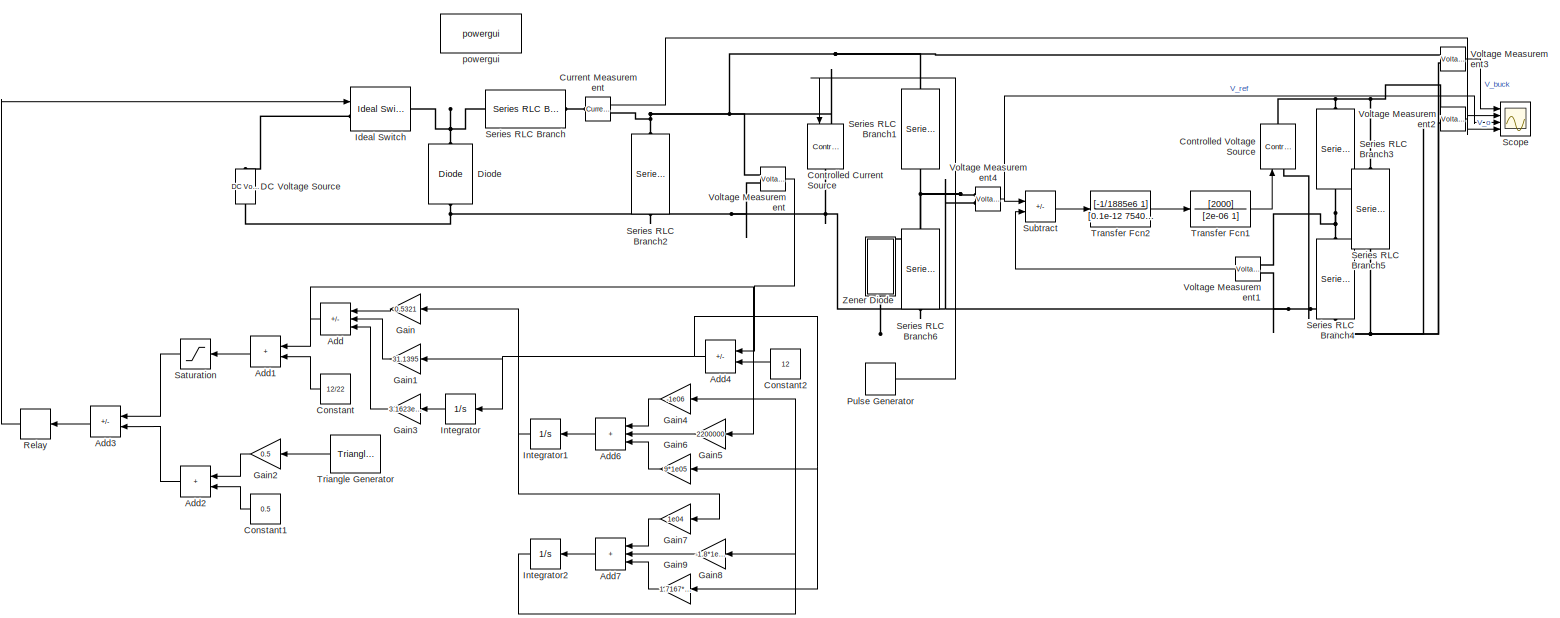
[diagram: root canvas - part 1/1, most of the canvas]
MODEL slx_18939c2cc093
KIND model
CONFIG AbsTol = auto
CONFIG EnableMultiTasking = off
CONFIG FixedStep = auto
CONFIG MaxStep = auto
CONFIG MinStep = auto
CONFIG RelTol = 1e-3
CONFIG SampleTimeConstraint = Unconstrained
CONFIG Solver = VariableStepAuto
CONFIG SolverName = VariableStepAuto
CONFIG StartTime = 0.0
CONFIG StopTime = 0.1
BLOCK [Sum] Add
  IconShape = rectangular
  Inputs = ---
  Ports = [3, 1]
BLOCK [Sum] Add1
  IconShape = rectangular
  Ports = [2, 1]
BLOCK [Sum] Add2
  IconShape = rectangular
  Ports = [2, 1]
BLOCK [Sum] Add3
  IconShape = rectangular
  Inputs = +-
  Ports = [2, 1]
BLOCK [Sum] Add4
  IconShape = rectangular
  Inputs = +-
  Ports = [2, 1]
BLOCK [Sum] Add6
  IconShape = rectangular
  Inputs = +++
  Ports = [3, 1]
BLOCK [Sum] Add7
  IconShape = rectangular
  Inputs = +++
  Ports = [3, 1]
BLOCK [Constant] Constant
  Value = 12/22
BLOCK [Constant] Constant1
  Value = 0.5
BLOCK [Constant] Constant2
  Value = 12
BLOCK [Reference] Controlled Current Source  REF=powerlib/Electrical
Sources/Controlled Current Source
  NameLocation = right
  Ports = [1, 0, 0, 0, 0, 1, 1]
  SourceBlock = powerlib/Electrical\nSources/Controlled Current Source
  SourceProductBaseCode = PS
  SourceType = Controlled Current Source
BLOCK [Reference] Controlled Voltage Source  REF=powerlib/Electrical
Sources/Controlled Voltage Source
  NameLocation = right
  Ports = [1, 0, 0, 0, 0, 1, 1]
  SourceBlock = powerlib/Electrical\nSources/Controlled Voltage Source
  SourceProductBaseCode = PS
  SourceType = Controlled Voltage Source
BLOCK [Reference] Current Measurement  REF=powerlib/Measurements/Current Measurement
  Ports = [0, 1, 0, 0, 0, 1, 1]
  SourceBlock = powerlib/Measurements/Current Measurement
  SourceProductBaseCode = PS
  SourceType = Current Measurement
  UserDataPersistent = on
BLOCK [Reference] DC Voltage Source  REF=powerlib/Electrical
Sources/DC Voltage Source
  NameLocation = right
  Ports = [0, 0, 0, 0, 0, 1, 1]
  SourceBlock = powerlib/Electrical\nSources/DC Voltage Source
  SourceProductBaseCode = PS
  SourceType = DC Voltage Source
BLOCK [Reference] Diode  REF=powerlib/Power
Electronics/Diode
  NameLocation = right
  Ports = [0, 0, 0, 0, 0, 1, 1]
  SourceBlock = powerlib/Power\nElectronics/Diode
  SourceProductBaseCode = PS
  SourceType = Diode
BLOCK [Gain] Gain
  Gain = 0.5321
BLOCK [Gain] Gain1
  Gain = 31.1395
BLOCK [Gain] Gain2
  Gain = 0.5
BLOCK [Gain] Gain3
  Gain = 3.1623e03
BLOCK [Gain] Gain4
  Gain = -1e06
BLOCK [Gain] Gain5
  Gain = 2200000
BLOCK [Gain] Gain6
  Gain = 9*1e05
BLOCK [Gain] Gain7
  Gain = 1e04
BLOCK [Gain] Gain8
  Gain = -1.8*1e05
BLOCK [Gain] Gain9
  Gain = 1.7167*1e05
BLOCK [Reference] Ideal Switch  REF=powerlib/Power
Electronics/Ideal Switch
  Ports = [1, 0, 0, 0, 0, 1, 1]
  SourceBlock = powerlib/Power\nElectronics/Ideal Switch
  SourceProductBaseCode = PS
  SourceType = Ideal Switch
BLOCK [Integrator] Integrator
  Ports = [1, 1]
BLOCK [Integrator] Integrator1
  Ports = [1, 1]
BLOCK [Integrator] Integrator2
  Ports = [1, 1]
BLOCK [DiscretePulseGenerator] Pulse Generator
  Amplitude = 5
  Period = 0.1
  PhaseDelay = 0.02
  Ports = [0, 1]
  PulseType = Time based
  PulseWidth = 50
BLOCK [Relay] Relay
BLOCK [Saturate] Saturation
  LowerLimit = 0
  UpperLimit = 1
  ZeroCross = off
BLOCK [Scope] Scope
  Floating = off
  NumInputPorts = 4
  Ports = [4]
  ScopeSpecificationString = Simulink.scopes.TimeScopeBlockCfg('CurrentConfiguration', extmgr.ConfigurationSet(extmgr.Configuration('Core','General UI',true),extmgr.Configuration('Core','Source UI',true),extmgr.Configuration('Sources','WiredSimulink',true,'DataLoggingVariableName','ScopeData1'),extmgr.Configuration('Visuals','Time Domain',true,'SerializedDisplays',{struct('MinYLimReal','11.58492','MaxYLimReal','12.45659','YLa...<+3561ch>
BLOCK [Reference] Series RLC Branch  REF=powerlib/Elements/Series RLC Branch
  Ports = [0, 0, 0, 0, 0, 1, 1]
  SourceBlock = powerlib/Elements/Series RLC Branch
  SourceProductBaseCode = PS
  SourceType = Series RLC Branch
BLOCK [Reference] Series RLC Branch1  REF=powerlib/Elements/Series RLC Branch
  NameLocation = left
  Ports = [0, 0, 0, 0, 0, 1, 1]
  SourceBlock = powerlib/Elements/Series RLC Branch
  SourceProductBaseCode = PS
  SourceType = Series RLC Branch
BLOCK [Reference] Series RLC Branch2  REF=powerlib/Elements/Series RLC Branch
  NameLocation = left
  Ports = [0, 0, 0, 0, 0, 1, 1]
  SourceBlock = powerlib/Elements/Series RLC Branch
  SourceProductBaseCode = PS
  SourceType = Series RLC Branch
BLOCK [Reference] Series RLC Branch3  REF=powerlib/Elements/Series RLC Branch
  NameLocation = left
  Ports = [0, 0, 0, 0, 0, 1, 1]
  SourceBlock = powerlib/Elements/Series RLC Branch
  SourceProductBaseCode = PS
  SourceType = Series RLC Branch
BLOCK [Reference] Series RLC Branch4  REF=powerlib/Elements/Series RLC Branch
  NameLocation = left
  Ports = [0, 0, 0, 0, 0, 1, 1]
  SourceBlock = powerlib/Elements/Series RLC Branch
  SourceProductBaseCode = PS
  SourceType = Series RLC Branch
BLOCK [Reference] Series RLC Branch5  REF=powerlib/Elements/Series RLC Branch
  NameLocation = left
  Ports = [0, 0, 0, 0, 0, 1, 1]
  SourceBlock = powerlib/Elements/Series RLC Branch
  SourceProductBaseCode = PS
  SourceType = Series RLC Branch
BLOCK [Reference] Series RLC Branch6  REF=powerlib/Elements/Series RLC Branch
  NameLocation = left
  Ports = [0, 0, 0, 0, 0, 1, 1]
  SourceBlock = powerlib/Elements/Series RLC Branch
  SourceProductBaseCode = PS
  SourceType = Series RLC Branch
BLOCK [Sum] Subtract
  IconShape = rectangular
  Inputs = +-
  Ports = [2, 1]
BLOCK [TransferFcn] Transfer Fcn1
  Denominator = [2e-06 1]
  Numerator = [2000]
BLOCK [TransferFcn] Transfer Fcn2
  Denominator = [0.1e-12 7540e-8 1]
  Numerator = [-1/1885e6 1]
BLOCK [Reference] Triangle Generator  REF=powerlib_meascontrol/Pulse & Signal
Generators/Triangle
Generator
  Ports = [0, 1]
  SourceBlock = powerlib_meascontrol/Pulse & Signal\nGenerators/Triangle\nGenerator
  SourceProductBaseCode = PS
  SourceType = Triangle Generator
BLOCK [Reference] Voltage Measurement  REF=powerlib/Measurements/Voltage Measurement
  Ports = [0, 1, 0, 0, 0, 2]
  SourceBlock = powerlib/Measurements/Voltage Measurement
  SourceProductBaseCode = PS
  SourceType = Voltage Measurement
  UserDataPersistent = on
BLOCK [Reference] Voltage Measurement1  REF=powerlib/Measurements/Voltage Measurement
  Ports = [0, 1, 0, 0, 0, 2]
  SourceBlock = powerlib/Measurements/Voltage Measurement
  SourceProductBaseCode = PS
  SourceType = Voltage Measurement
  UserDataPersistent = on
BLOCK [Reference] Voltage Measurement2  REF=powerlib/Measurements/Voltage Measurement
  Ports = [0, 1, 0, 0, 0, 2]
  SourceBlock = powerlib/Measurements/Voltage Measurement
  SourceProductBaseCode = PS
  SourceType = Voltage Measurement
  UserDataPersistent = on
BLOCK [Reference] Voltage Measurement3  REF=powerlib/Measurements/Voltage Measurement
  Ports = [0, 1, 0, 0, 0, 2]
  SourceBlock = powerlib/Measurements/Voltage Measurement
  SourceProductBaseCode = PS
  SourceType = Voltage Measurement
  UserDataPersistent = on
BLOCK [Reference] Voltage Measurement4  REF=powerlib/Measurements/Voltage Measurement
  Ports = [0, 1, 0, 0, 0, 2]
  SourceBlock = powerlib/Measurements/Voltage Measurement
  SourceProductBaseCode = PS
  SourceType = Voltage Measurement
  UserDataPersistent = on
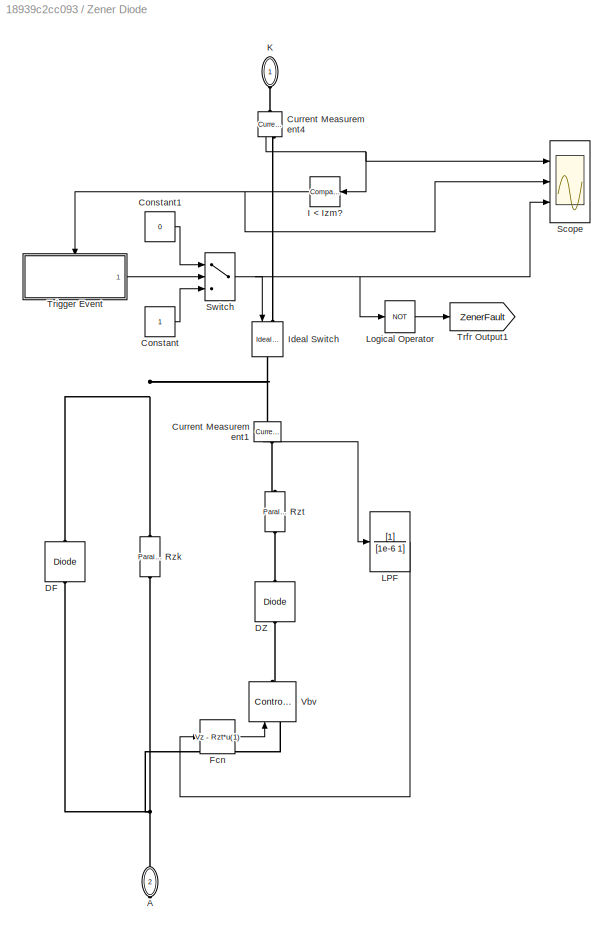
BLOCK [SubSystem] Zener Diode
  NameLocation = left
  Ports = [0, 0, 0, 0, 0, 1, 1]
  RequestExecContextInheritance = off
BLOCK [PMIOPort] Zener Diode/A
  NameLocation = left
  Port = 2
  Side = Right
BLOCK [Constant] Zener Diode/Constant
BLOCK [Constant] Zener Diode/Constant1
  Value = 0
BLOCK [Reference] Zener Diode/Current Measurement1  REF=powerlib/Measurements/Current Measurement
  NameLocation = left
  Ports = [0, 1, 0, 0, 0, 1, 1]
  SourceBlock = powerlib/Measurements/Current Measurement
  SourceProductBaseCode = PS
  SourceType = Current Measurement
BLOCK [Reference] Zener Diode/Current Measurement4  REF=powerlib/Measurements/Current Measurement
  NameLocation = left
  Ports = [0, 1, 0, 0, 0, 1, 1]
  SourceBlock = powerlib/Measurements/Current Measurement
  SourceProductBaseCode = PS
  SourceType = Current Measurement
BLOCK [Reference] Zener Diode/DF  REF=powerlib/Power
Electronics/Diode
  AttributesFormatString = \n
  NameLocation = left
  Ports = [0, 0, 0, 0, 0, 1, 1]
  SourceBlock = powerlib/Power\nElectronics/Diode
  SourceProductBaseCode = PS
  SourceType = Diode
BLOCK [Reference] Zener Diode/DZ  REF=powerlib/Power
Electronics/Diode
  AttributesFormatString = \n
  NameLocation = left
  Ports = [0, 0, 0, 0, 0, 1, 1]
  SourceBlock = powerlib/Power\nElectronics/Diode
  SourceProductBaseCode = PS
  SourceType = Diode
BLOCK [Fcn] Zener Diode/Fcn
  Expr = Vz - Rzt*u(1)
BLOCK [Reference] Zener Diode/I < Izm?  REF=simulink/Logic and Bit
Operations/Compare
To Constant
  Ports = [1, 1]
  SourceBlock = simulink/Logic and Bit\nOperations/Compare\nTo Constant
  SourceProductBaseCode = SL
  SourceType = Compare To Constant
BLOCK [Reference] Zener Diode/Ideal Switch  REF=powerlib/Power
Electronics/Ideal Switch
  NameLocation = left
  Ports = [1, 0, 0, 0, 0, 1, 1]
  SourceBlock = powerlib/Power\nElectronics/Ideal Switch
  SourceProductBaseCode = PS
  SourceType = Ideal Switch
BLOCK [PMIOPort] Zener Diode/K
  NameLocation = left
  Side = Left
BLOCK [TransferFcn] Zener Diode/LPF
  Denominator = [1e-6 1]
  NameLocation = top
BLOCK [Logic] Zener Diode/Logical Operator
  AllPortsSameDT = off
  Operator = NOT
  OutDataTypeStr = boolean
  Ports = [1, 1]
BLOCK [Reference] Zener Diode/Rzk  REF=powerlib/Elements/Parallel RLC Branch
  AttributesFormatString = \n
  NameLocation = left
  Ports = [0, 0, 0, 0, 0, 1, 1]
  SourceBlock = powerlib/Elements/Parallel RLC Branch
  SourceProductBaseCode = PS
  SourceType = Parallel RLC Branch
BLOCK [Reference] Zener Diode/Rzt  REF=powerlib/Elements/Parallel RLC Branch
  AttributesFormatString = \n
  NameLocation = left
  Ports = [0, 0, 0, 0, 0, 1, 1]
  SourceBlock = powerlib/Elements/Parallel RLC Branch
  SourceProductBaseCode = PS
  SourceType = Parallel RLC Branch
BLOCK [Scope] Zener Diode/Scope
  Floating = off
  NumInputPorts = 3
  Ports = [3]
  ScopeSpecificationString = C++SS(StrPVP('Location','[9, 663, 601, 1068]'),StrPVP('Open','off'),StrPVP('ZoomMode','xonly'),MxPVP('AxesTitles',54,'struct(''axes1'',''%<SignalLabel>'',''axes2'',''%<SignalLabel>'',''axes3'',''%<SignalLabel>'')'),StrPVP('ShowLegends','off'),StrPVP('YMin','-2.77556e-017~-1~0.95'),StrPVP('YMax','0.4~1~1.05'),StrPVP('SaveName','ScopeData4'),StrPVP('DataFormat','StructureWithTime'),StrPVP('LimitData...<+113ch>
BLOCK [Switch] Zener Diode/Switch
  Criteria = u2 > Threshold
  InputSameDT = off
  SaturateOnIntegerOverflow = off
BLOCK [Goto] Zener Diode/Trfr Output1
  GotoTag = ZenerFault
  TagVisibility = global
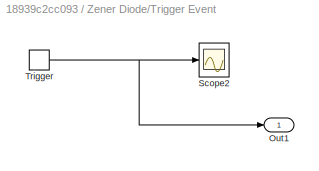
BLOCK [SubSystem] Zener Diode/Trigger Event
  Ports = [0, 1, 0, 1]
  RequestExecContextInheritance = off
  TreatAsAtomicUnit = on
BLOCK [Outport] Zener Diode/Trigger Event/Out1
  VectorParamsAs1DForOutWhenUnconnected = off
BLOCK [Scope] Zener Diode/Trigger Event/Scope2
  Floating = off
  NumInputPorts = 1
  Ports = [1]
  ScopeSpecificationString = C++SS(StrPVP('Location','[683, 406, 1275, 811]'),StrPVP('Open','off'),StrPVP('ZoomMode','xonly'),MxPVP('AxesTitles',54,'struct(''axes1'',''%<SignalLabel>'')'),StrPVP('ShowLegends','off'),StrPVP('YMin','-1'),StrPVP('YMax','1'),StrPVP('SaveName','ScopeData1'),StrPVP('DataFormat','StructureWithTime'),StrPVP('LimitDataPoints','off'),StrPVP('BlockParamSampleTime','0'),StrPVP('Decimation','1'),StrPVP('B...<+29ch>
BLOCK [TriggerPort] Zener Diode/Trigger Event/Trigger
  Ports = [0, 1]
  ShowOutputPort = on
  StatesWhenEnabling = held
  VariantControl = Variant
BLOCK [Reference] Zener Diode/Vbv  REF=powerlib/Electrical
Sources/Controlled Voltage Source
  NameLocation = left
  Ports = [1, 0, 0, 0, 0, 1, 1]
  SourceBlock = powerlib/Electrical\nSources/Controlled Voltage Source
  SourceProductBaseCode = PS
  SourceType = Controlled Voltage Source
BLOCK [Reference] powergui  REF=powerlib/powergui
  Ports = []
  Priority = 1
  SourceBlock = powerlib/powergui
  SourceProductBaseCode = PS
  SourceType = PSB option menu block
LINE Add1:1 -> Saturation:1
LINE Add2:1 -> Add3:2
LINE Add3:1 -> Relay:1
NET Add4:1 -> Gain1:1, Gain6:1, Gain9:1, Integrator:1
LINE Add6:1 -> Integrator1:1
LINE Add7:1 -> Integrator2:1
NET Add:1 -> Add1:1, Gain5:1
LINE Constant1:1 -> Add2:2
LINE Constant2:1 -> Add4:2
LINE Constant:1 -> Add1:2
LINE Current Measurement:1 -> Scope:4
LINE Gain1:1 -> Add:2
LINE Gain2:1 -> Add2:1
LINE Gain3:1 -> Add:3
LINE Gain4:1 -> Add6:1
LINE Gain5:1 -> Add6:2
LINE Gain6:1 -> Add6:3
LINE Gain7:1 -> Add7:1
LINE Gain8:1 -> Add7:2
LINE Gain9:1 -> Add7:3
LINE Gain:1 -> Add:1
NET Integrator1:1 -> Gain7:1, Gain:1
NET Integrator2:1 -> Gain4:1, Gain8:1
LINE Integrator:1 -> Gain3:1
LINE Pulse Generator:1 -> Controlled Current Source:1
LINE Relay:1 -> Ideal Switch:1
LINE Saturation:1 -> Add3:1
LINE Subtract:1 -> Transfer Fcn2:1
LINE Transfer Fcn1:1 -> Controlled Voltage Source:1
LINE Transfer Fcn2:1 -> Transfer Fcn1:1
LINE Triangle Generator:1 -> Gain2:1
LINE Voltage Measurement1:1 -> Subtract:2
LINE Voltage Measurement2:1 -> Scope:2
LINE Voltage Measurement3:1 -> Scope:1
NET Voltage Measurement4:1 -> Scope:3, Subtract:1
LINE Voltage Measurement:1 -> Add4:1
LINE Zener Diode/Constant1:1 -> Zener Diode/Switch:1
LINE Zener Diode/Constant:1 -> Zener Diode/Switch:3
LINE Zener Diode/Current Measurement1:1 -> Zener Diode/LPF:1
NET Zener Diode/Current Measurement4:1 -> Zener Diode/I < Izm?:1, Zener Diode/Scope:1
LINE Zener Diode/Fcn:1 -> Zener Diode/Vbv:1
NET Zener Diode/I < Izm?:1 -> Zener Diode/Scope:2, Zener Diode/Trigger Event:trigger
LINE Zener Diode/LPF:1 -> Zener Diode/Fcn:1
LINE Zener Diode/Logical Operator:1 -> Zener Diode/Trfr Output1:1
NET Zener Diode/Switch:1 -> Zener Diode/Ideal Switch:1, Zener Diode/Logical Operator:1, Zener Diode/Scope:3
NET Zener Diode/Trigger Event/Trigger:1 -> Zener Diode/Trigger Event/Out1:1, Zener Diode/Trigger Event/Scope2:1
LINE Zener Diode/Trigger Event:1 -> Zener Diode/Switch:2
PNET net1: Controlled Current Source:LConn1 -- Current Measurement:RConn1 -- Series RLC Branch1:LConn1 -- Series RLC Branch2:LConn1 -- Voltage Measurement3:LConn1 -- Voltage Measurement:LConn1
PNET net2: Controlled Current Source:RConn1 -- Controlled Voltage Source:LConn1 -- DC Voltage Source:LConn1 -- Diode:LConn1 -- Series RLC Branch2:RConn1 -- Series RLC Branch4:RConn1 -- Series RLC Branch5:RConn1 -- Series RLC Branch6:RConn1 -- Voltage Measurement1:LConn2 -- Voltage Measurement2:LConn2 -- Voltage Measurement3:LConn2 -- Voltage Measurement4:LConn2 -- Voltage Measurement:LConn2 -- Zener Diode:RConn1
PNET net3: Controlled Voltage Source:RConn1 -- Series RLC Branch3:LConn1 -- Series RLC Branch5:LConn1 -- Voltage Measurement2:LConn1
PLINE Current Measurement:LConn1 -- Series RLC Branch:RConn1
PLINE DC Voltage Source:RConn1 -- Ideal Switch:LConn1
PNET net4: Diode:RConn1 -- Ideal Switch:RConn1 -- Series RLC Branch:LConn1
PNET net5: Series RLC Branch1:RConn1 -- Series RLC Branch6:LConn1 -- Voltage Measurement4:LConn1 -- Zener Diode:LConn1
PNET net6: Series RLC Branch3:RConn1 -- Series RLC Branch4:LConn1 -- Voltage Measurement1:LConn1
PNET net7: Zener Diode/A:RConn1 -- Zener Diode/DF:LConn1 -- Zener Diode/Rzk:LConn1 -- Zener Diode/Vbv:LConn1
PNET net8: Zener Diode/Current Measurement1:LConn1 -- Zener Diode/DF:RConn1 -- Zener Diode/Ideal Switch:RConn1 -- Zener Diode/Rzk:RConn1
PLINE Zener Diode/Current Measurement1:RConn1 -- Zener Diode/Rzt:RConn1
PLINE Zener Diode/Current Measurement4:LConn1 -- Zener Diode/K:RConn1
PLINE Zener Diode/Current Measurement4:RConn1 -- Zener Diode/Ideal Switch:LConn1
PLINE Zener Diode/DZ:LConn1 -- Zener Diode/Rzt:LConn1
PLINE Zener Diode/DZ:RConn1 -- Zener Diode/Vbv:RConn1
note: NET lines group one-source signal fan-out (src -> all destinations, sorted); 1:1 wires keep LINE; PNET lines group multi-terminal physical nets as a canonical sorted terminal list (undirected conserving connections); 2-terminal nets keep the pairwise PLINE form
